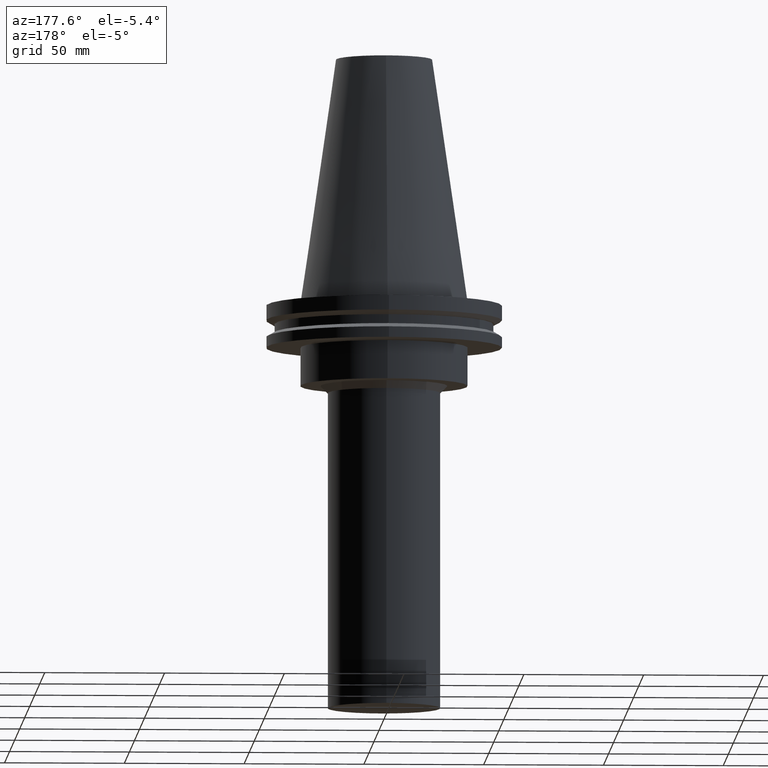
[diagram: clean part render]
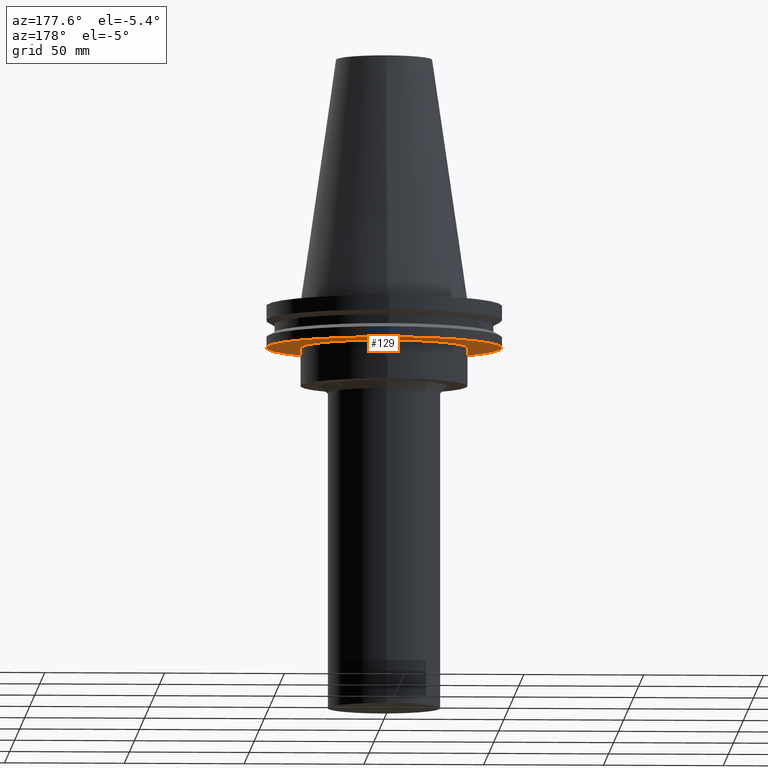
[diagram: same view with one face highlighted and labeled with its STEP entity id]
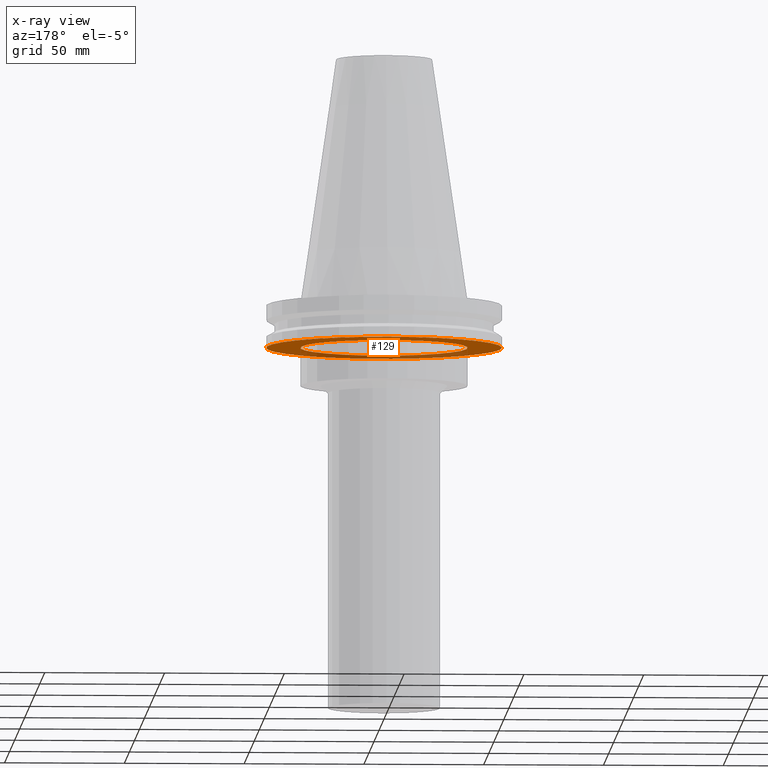
[diagram: x-ray of the same camera — body ghosted, the highlighted face saturated]
A machine part, auxiliary view. The second image highlights one B-rep face of the part: STEP entity #129.
The next image is the same camera in x-ray: the body ghosted, the highlighted face saturated — about 29% of this face is hidden behind the body in this view.
In plain terms, the highlighted planar face has unit normal (0, 0, -1).
Its self-contained STEP definition (entity closure, byte-faithful):
#88=EDGE_CURVE('Unnamed[1]',#206,#206,#207,.T.);
#98=EDGE_CURVE('Unnamed[1]',#222,#222,#223,.T.);
#129=ADVANCED_FACE('Unnamed[1]',(#269,#270),#271,.T.);
#206=VERTEX_POINT('',#357);
#207=CIRCLE('',#358,49.2124999999999);
#222=VERTEX_POINT('',#377);
#223=CIRCLE('',#378,34.925);
#269=FACE_BOUND('',#437,.T.);
#270=FACE_OUTER_BOUND('',#438,.T.);
#271=PLANE('',#439);
#357=CARTESIAN_POINT('',(1.16647607618786E-015,49.2124999999999,-19.0500000000001));
#358=AXIS2_PLACEMENT_3D('',#518,#519,#520);
#377=CARTESIAN_POINT('',(1.16647607618786E-015,34.925,-19.0500000000001));
#378=AXIS2_PLACEMENT_3D('',#536,#537,#538);
#437=EDGE_LOOP('',(#587));
#438=EDGE_LOOP('',(#588));
#439=AXIS2_PLACEMENT_3D('',#589,#590,#591);
#518=CARTESIAN_POINT('',(1.16647607618786E-015,-9.65732084387448E-015,-19.0500000000001));
#519=DIRECTION('',(6.12323399573676E-017,4.82717484294155E-016,-1.0));
#520=DIRECTION('',(-3.4385073832434E-032,1.0,4.82717484294155E-016));
#536=CARTESIAN_POINT('',(1.16647607618786E-015,-9.6573208438745E-015,-19.0500000000001));
#537=DIRECTION('',(6.12323399573677E-017,4.82717484294155E-016,-1.0));
#538=DIRECTION('',(-3.4385073832434E-032,1.0,4.82717484294155E-016));
#587=ORIENTED_EDGE('',*,*,#98,.F.);
#588=ORIENTED_EDGE('',*,*,#88,.T.);
#589=CARTESIAN_POINT('',(1.16647607618786E-015,42.06875,-19.0500000000001));
#590=DIRECTION('',(6.12323399573677E-017,1.22464679914735E-016,-1.0));
#591=DIRECTION('',(-1.23259516440783E-032,1.0,1.22464679914735E-016));